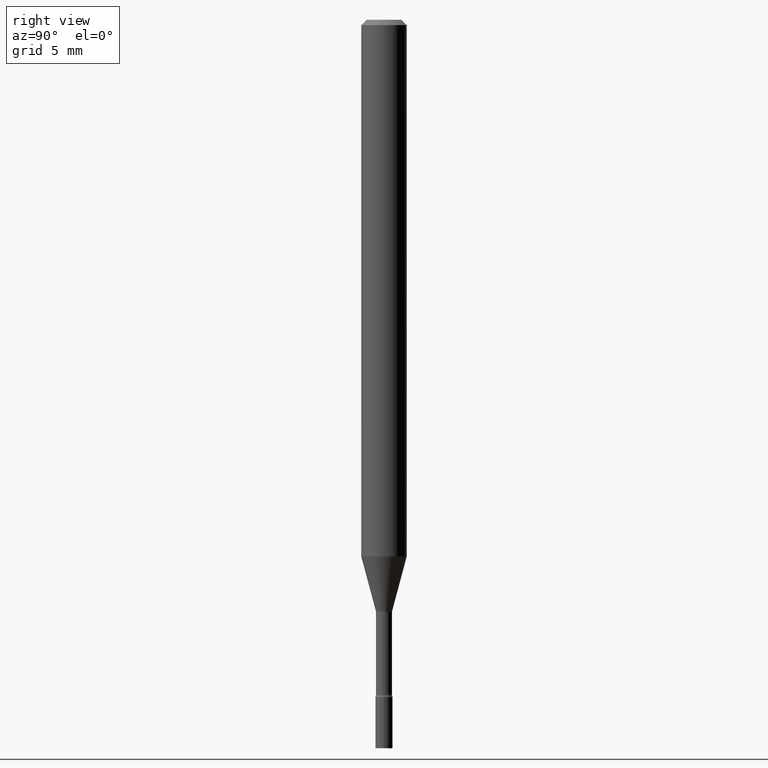
[diagram: clean part render]
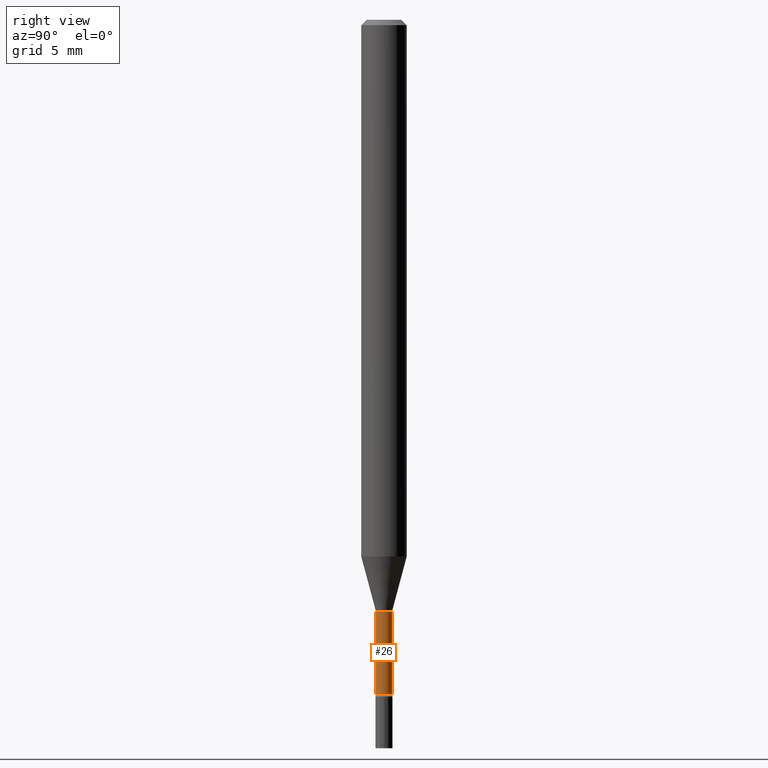
[diagram: same view with one face highlighted and labeled with its STEP entity id]
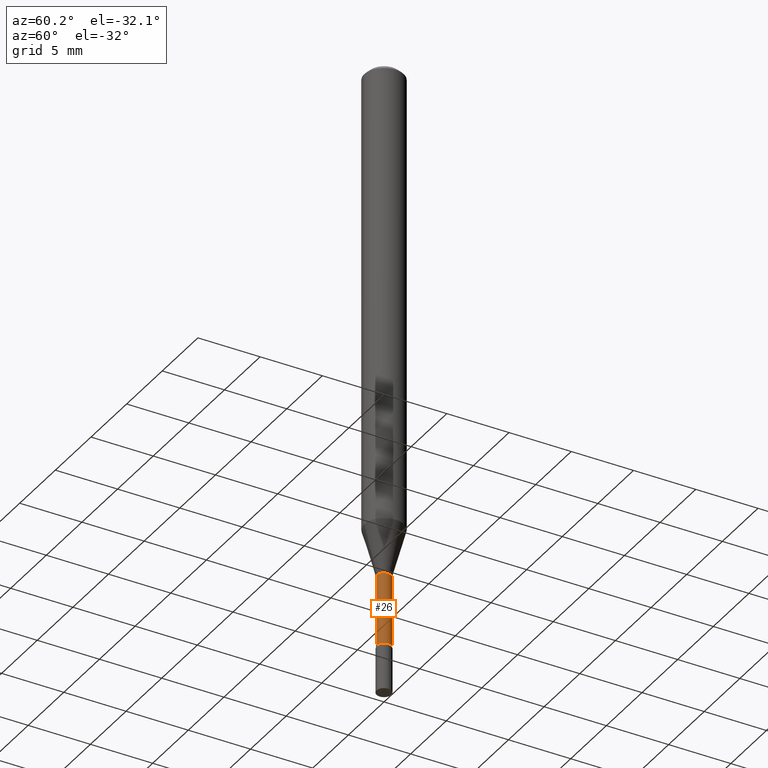
[diagram: same view with one face highlighted and labeled with its STEP entity id]
A machine part, right view. The second image highlights one B-rep face of the part: STEP entity #26.
A second angle (auxiliary view) of the same face is appended — the face is thin or edge-on in the first view.
In plain terms, the highlighted cylindrical surface (edge-blend (fillet) strip) has radius 0.5613 mm, axis along (-0, 0, 1).
Its self-contained STEP definition (entity closure, byte-faithful):
#3 = CARTESIAN_POINT ( 'NONE',  ( -1.543234751768266986E-16, -0.02210000000000567413, -1.625974787463811078 ) ) ;
#26 = ADVANCED_FACE ( 'NONE', ( #228 ), #350, .T. ) ;
#66 = CARTESIAN_POINT ( 'NONE',  ( 0.000000000000000000, 0.000000000000000000, 0.000000000000000000 ) ) ;
#73 = EDGE_CURVE ( 'NONE', #294, #287, #232, .T. ) ;
#99 = AXIS2_PLACEMENT_3D ( 'NONE', #430, #347, #469 ) ;
#101 = DIRECTION ( 'NONE',  ( -2.445478591985838029E-29, 3.491467325019567696E-15, 1.000000000000000000 ) ) ;
#112 = EDGE_CURVE ( 'NONE', #455, #507, #482, .T. ) ;
#117 = CARTESIAN_POINT ( 'NONE',  ( -1.543234751768666594E-16, -0.02210000000000002587, 7.716142788293254101E-17 ) ) ;
#118 = VECTOR ( 'NONE', #279, 39.37007874015748143 ) ;
#128 = EDGE_LOOP ( 'NONE', ( #496, #457, #212, #342 ) ) ;
#160 = CARTESIAN_POINT ( 'NONE',  ( -1.543234751768215957E-16, -0.02210000000000652762, -1.852672283192177582 ) ) ;
#175 = CIRCLE ( 'NONE', #187, 0.02209999999999999812 ) ;
#179 = CARTESIAN_POINT ( 'NONE',  ( 1.570299446030275612E-16, 0.02209999999999431863, -1.625974787463811078 ) ) ;
#187 = AXIS2_PLACEMENT_3D ( 'NONE', #331, #209, #253 ) ;
#209 = DIRECTION ( 'NONE',  ( -2.445478591985838029E-29, 3.491467325019567696E-15, 1.000000000000000000 ) ) ;
#212 = ORIENTED_EDGE ( 'NONE', *, *, #283, .F. ) ;
#214 = CIRCLE ( 'NONE', #99, 0.02210000000000006057 ) ;
#228 = FACE_OUTER_BOUND ( 'NONE', #128, .T. ) ;
#232 = LINE ( 'NONE', #117, #240 ) ;
#240 = VECTOR ( 'NONE', #473, 39.37007874015748143 ) ;
#246 = AXIS2_PLACEMENT_3D ( 'NONE', #66, #101, #295 ) ;
#253 = DIRECTION ( 'NONE',  ( -6.982962677686265922E-15, -1.000000000000000000, 0.000000000000000000 ) ) ;
#279 = DIRECTION ( 'NONE',  ( -2.445478591985837749E-29, 3.491467325019568091E-15, 1.000000000000000000 ) ) ;
#283 = EDGE_CURVE ( 'NONE', #287, #507, #175, .T. ) ;
#287 = VERTEX_POINT ( 'NONE', #3 ) ;
#294 = VERTEX_POINT ( 'NONE', #160 ) ;
#295 = DIRECTION ( 'NONE',  ( -6.982962677686265922E-15, -1.000000000000000000, 3.491467325019568091E-15 ) ) ;
#331 = CARTESIAN_POINT ( 'NONE',  ( 3.976286533851473085E-29, -5.677037841735531897E-15, -1.625974787463811078 ) ) ;
#342 = ORIENTED_EDGE ( 'NONE', *, *, #73, .F. ) ;
#347 = DIRECTION ( 'NONE',  ( -2.445478591985838029E-29, 3.491467325019567696E-15, 1.000000000000000000 ) ) ;
#350 = CYLINDRICAL_SURFACE ( 'NONE', #246, 0.02210000000000002587 ) ;
#430 = CARTESIAN_POINT ( 'NONE',  ( 4.530670406511994597E-29, -6.468544740734887756E-15, -1.852672283192177582 ) ) ;
#438 = EDGE_CURVE ( 'NONE', #294, #455, #214, .T. ) ;
#455 = VERTEX_POINT ( 'NONE', #506 ) ;
#457 = ORIENTED_EDGE ( 'NONE', *, *, #112, .T. ) ;
#469 = DIRECTION ( 'NONE',  ( -6.982962677686265922E-15, -1.000000000000000000, 0.000000000000000000 ) ) ;
#473 = DIRECTION ( 'NONE',  ( -2.445478591985837749E-29, 3.491467325019568091E-15, 1.000000000000000000 ) ) ;
#480 = CARTESIAN_POINT ( 'NONE',  ( 1.570299446029823003E-16, 0.02210000000000002587, -7.716142788293254101E-17 ) ) ;
#482 = LINE ( 'NONE', #480, #118 ) ;
#496 = ORIENTED_EDGE ( 'NONE', *, *, #438, .T. ) ;
#506 = CARTESIAN_POINT ( 'NONE',  ( 1.620037437533484049E-16, 0.02209999999999359352, -1.852672283192177582 ) ) ;
#507 = VERTEX_POINT ( 'NONE', #179 ) ;